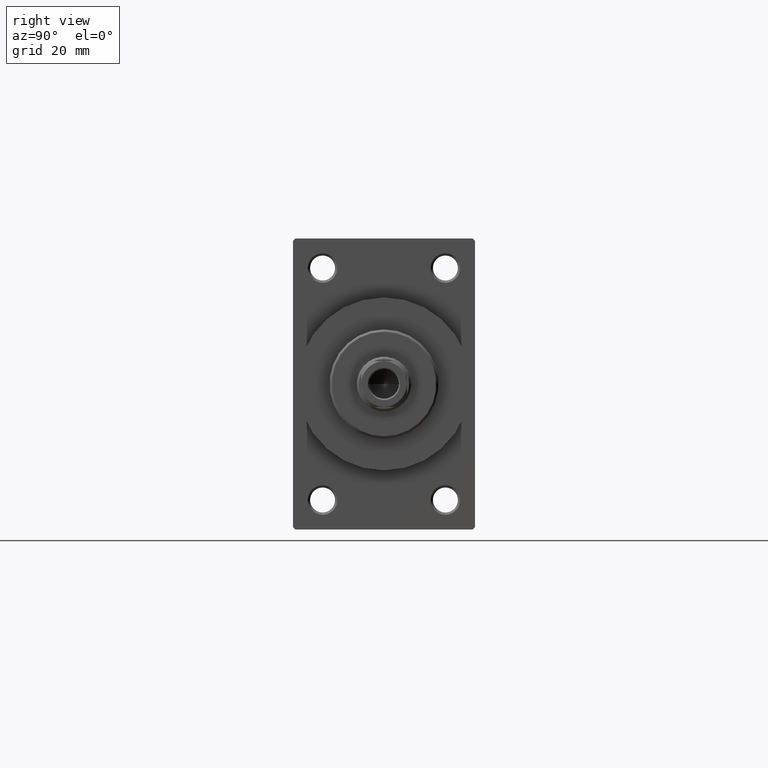
[diagram: clean part render]
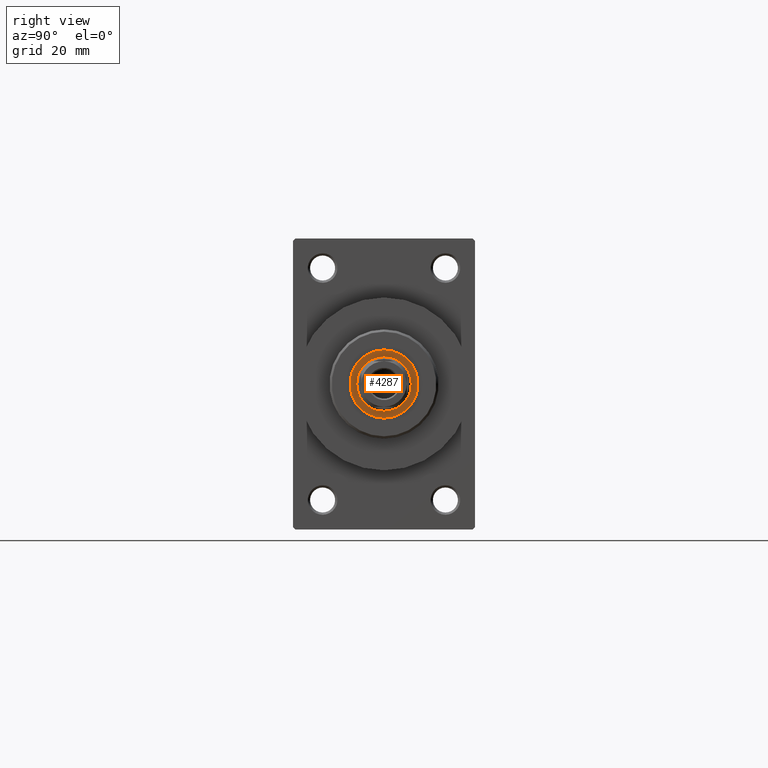
[diagram: same view with one face highlighted and labeled with its STEP entity id]
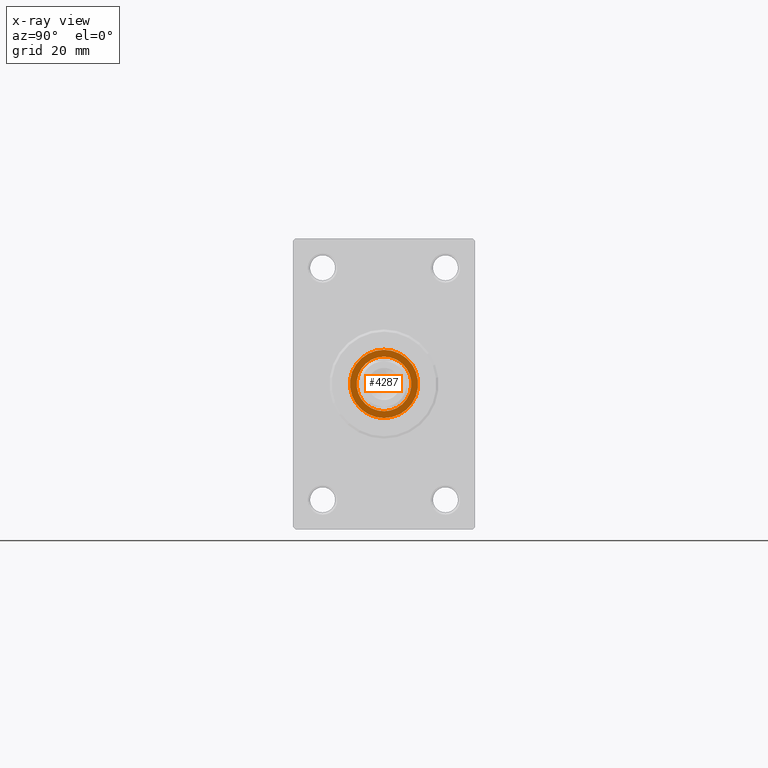
[diagram: x-ray of the same camera — body ghosted, the highlighted face saturated]
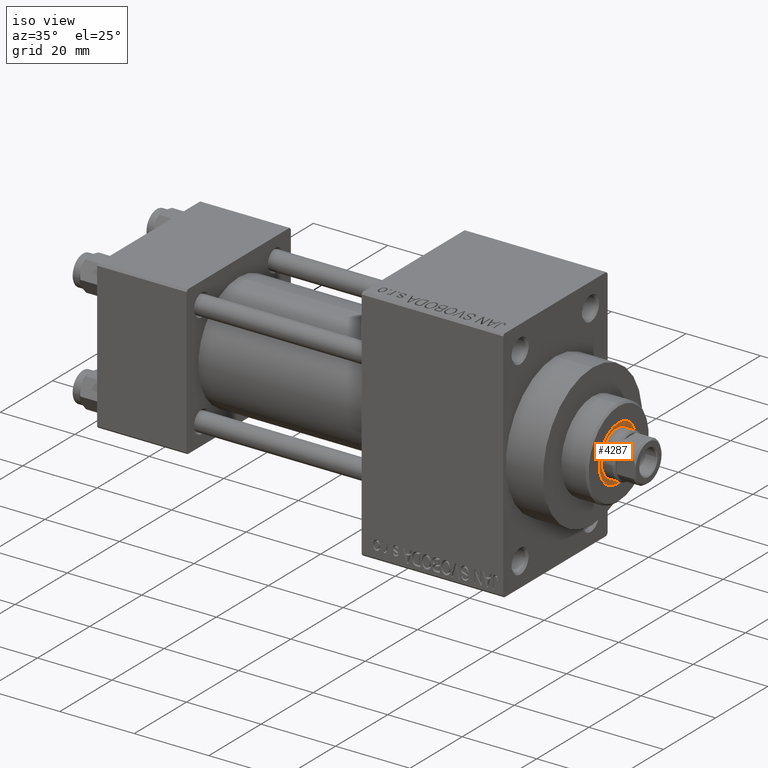
[diagram: same view with one face highlighted and labeled with its STEP entity id]
A machine part, right view. The second image highlights one B-rep face of the part: STEP entity #4287.
The next image is the same camera in x-ray: the body ghosted, the highlighted face saturated — about 0% of this face is hidden behind the body in this view.
A second angle (iso view) of the same face is appended — the face is thin or edge-on in the first view.
In plain terms, the highlighted planar face has unit normal (1, -0, -0).
Its self-contained STEP definition (entity closure, byte-faithful):
#88 = VERTEX_POINT ( 'NONE', #33789 ) ;
#248 = CARTESIAN_POINT ( 'NONE',  ( 0.000000000000000000, 0.000000000000000000, 49.75999999999999801 ) ) ;
#1332 = DIRECTION ( 'NONE',  ( -0.000000000000000000, -0.000000000000000000, -1.000000000000000000 ) ) ;
#2674 = EDGE_CURVE ( 'NONE', #39870, #88, #38409, .T. ) ;
#2840 = DIRECTION ( 'NONE',  ( 1.000000000000000000, 0.000000000000000000, 0.000000000000000000 ) ) ;
#3427 = EDGE_CURVE ( 'NONE', #88, #39870, #19216, .T. ) ;
#3840 = DIRECTION ( 'NONE',  ( 1.000000000000000000, 0.000000000000000000, 0.000000000000000000 ) ) ;
#4096 = DIRECTION ( 'NONE',  ( 1.000000000000000000, 0.000000000000000000, 0.000000000000000000 ) ) ;
#4287 = ADVANCED_FACE ( 'NONE', ( #28405, #24154 ), #6270, .T. ) ;
#6270 = PLANE ( 'NONE',  #34453 ) ;
#7579 = DIRECTION ( 'NONE',  ( 0.000000000000000000, 0.000000000000000000, 1.000000000000000000 ) ) ;
#9380 = DIRECTION ( 'NONE',  ( 1.000000000000000000, 0.000000000000000000, -0.000000000000000000 ) ) ;
#10441 = CARTESIAN_POINT ( 'NONE',  ( -7.500000000000000888, 9.184850993605149917E-16, 49.75999999999999801 ) ) ;
#10512 = EDGE_CURVE ( 'NONE', #14413, #10527, #38427, .T. ) ;
#10527 = VERTEX_POINT ( 'NONE', #10441 ) ;
#11756 = AXIS2_PLACEMENT_3D ( 'NONE', #248, #25736, #3840 ) ;
#14413 = VERTEX_POINT ( 'NONE', #37854 ) ;
#14435 = CIRCLE ( 'NONE', #37291, 7.500000000000000888 ) ;
#16666 = EDGE_LOOP ( 'NONE', ( #41703, #28157 ) ) ;
#16994 = DIRECTION ( 'NONE',  ( 0.000000000000000000, 0.000000000000000000, 1.000000000000000000 ) ) ;
#19216 = CIRCLE ( 'NONE', #36697, 6.000000000000000888 ) ;
#24154 = FACE_BOUND ( 'NONE', #16666, .T. ) ;
#25736 = DIRECTION ( 'NONE',  ( -0.000000000000000000, -0.000000000000000000, -1.000000000000000000 ) ) ;
#28157 = ORIENTED_EDGE ( 'NONE', *, *, #3427, .T. ) ;
#28405 = FACE_OUTER_BOUND ( 'NONE', #28430, .T. ) ;
#28430 = EDGE_LOOP ( 'NONE', ( #35004, #41998 ) ) ;
#28806 = EDGE_CURVE ( 'NONE', #10527, #14413, #14435, .T. ) ;
#29318 = CARTESIAN_POINT ( 'NONE',  ( 0.000000000000000000, 0.000000000000000000, 49.75999999999999801 ) ) ;
#30123 = DIRECTION ( 'NONE',  ( 1.000000000000000000, 0.000000000000000000, 0.000000000000000000 ) ) ;
#31329 = CARTESIAN_POINT ( 'NONE',  ( 6.000000000000000888, 0.000000000000000000, 49.75999999999999801 ) ) ;
#32883 = DIRECTION ( 'NONE',  ( 0.000000000000000000, 0.000000000000000000, 1.000000000000000000 ) ) ;
#33789 = CARTESIAN_POINT ( 'NONE',  ( -6.000000000000000888, 7.347880794884120722E-16, 49.75999999999999801 ) ) ;
#34453 = AXIS2_PLACEMENT_3D ( 'NONE', #35560, #16994, #9380 ) ;
#35004 = ORIENTED_EDGE ( 'NONE', *, *, #10512, .T. ) ;
#35560 = CARTESIAN_POINT ( 'NONE',  ( 0.000000000000000000, 0.000000000000000000, 49.75999999999999801 ) ) ;
#36697 = AXIS2_PLACEMENT_3D ( 'NONE', #40843, #1332, #30123 ) ;
#37291 = AXIS2_PLACEMENT_3D ( 'NONE', #29318, #32883, #4096 ) ;
#37854 = CARTESIAN_POINT ( 'NONE',  ( 7.500000000000000888, 0.000000000000000000, 49.75999999999999801 ) ) ;
#38409 = CIRCLE ( 'NONE', #11756, 6.000000000000000888 ) ;
#38427 = CIRCLE ( 'NONE', #44513, 7.500000000000000888 ) ;
#39870 = VERTEX_POINT ( 'NONE', #31329 ) ;
#39955 = CARTESIAN_POINT ( 'NONE',  ( 0.000000000000000000, 0.000000000000000000, 49.75999999999999801 ) ) ;
#40843 = CARTESIAN_POINT ( 'NONE',  ( 0.000000000000000000, 0.000000000000000000, 49.75999999999999801 ) ) ;
#41703 = ORIENTED_EDGE ( 'NONE', *, *, #2674, .T. ) ;
#41998 = ORIENTED_EDGE ( 'NONE', *, *, #28806, .T. ) ;
#44513 = AXIS2_PLACEMENT_3D ( 'NONE', #39955, #7579, #2840 ) ;